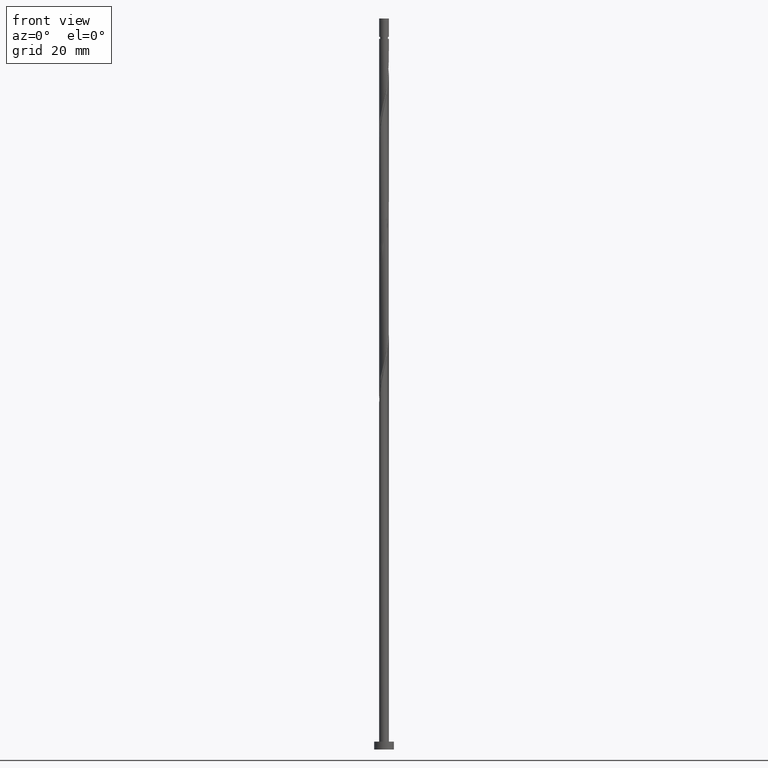
[diagram: clean part render]
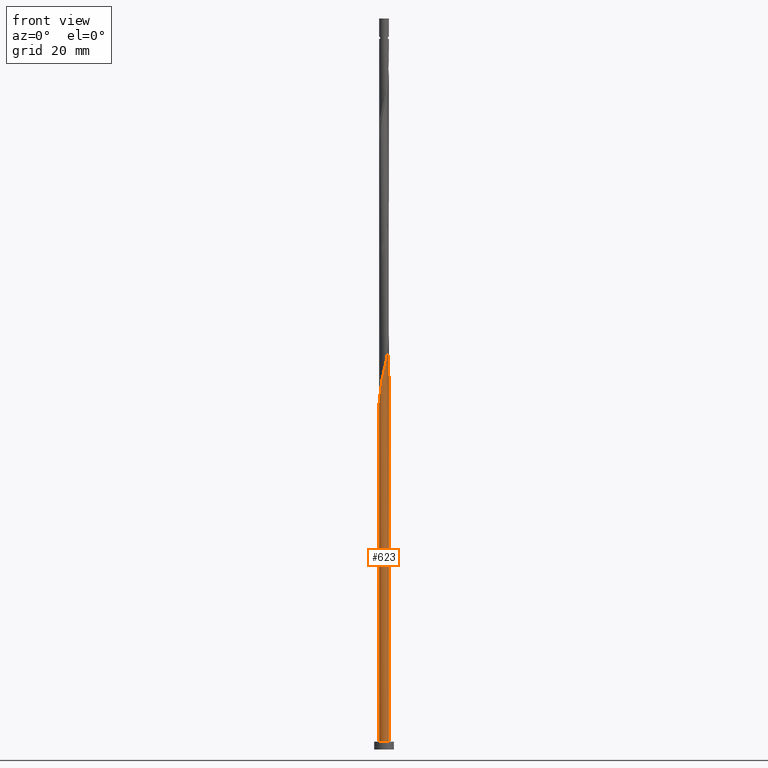
[diagram: same view with one face highlighted and labeled with its STEP entity id]
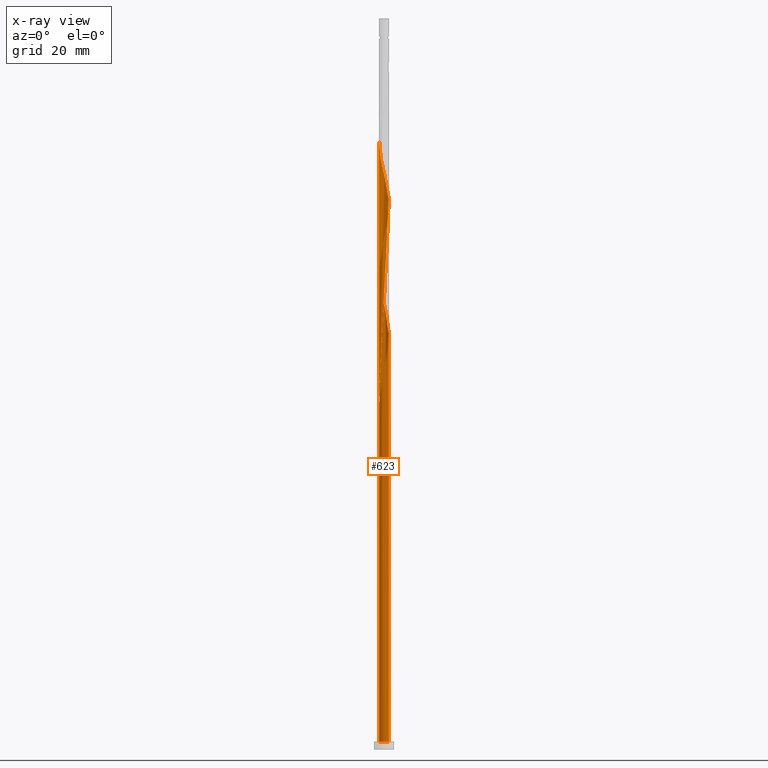
[diagram: x-ray of the same camera — body ghosted, the highlighted face saturated]
A machine part, front view. The second image highlights one B-rep face of the part: STEP entity #623.
The next image is the same camera in x-ray: the body ghosted, the highlighted face saturated — about 0% of this face is hidden behind the body in this view.
In plain terms, the highlighted cylindrical surface (bore or boss wall) has radius 1.25 mm, axis along (-0, -0, -1).
Its self-contained STEP definition (entity closure, byte-faithful):
#3 = EDGE_CURVE ( 'NONE', #858, #1055, #978, .T. ) ;
#11 = ORIENTED_EDGE ( 'NONE', *, *, #1561, .F. ) ;
#16 = CARTESIAN_POINT ( 'NONE',  ( 0.000000000000000000, 0.000000000000000000, 2.000000000000000000 ) ) ;
#29 = CARTESIAN_POINT ( 'NONE',  ( -0.3970789007548229388, 1.185254549274265434, 83.60107748277430062 ) ) ;
#42 = CARTESIAN_POINT ( 'NONE',  ( -1.045505570518540539, -0.7046275228471895469, 91.23996637166324319 ) ) ;
#49 = CARTESIAN_POINT ( 'NONE',  ( -1.224999999999999201, 0.2487468592766560738, 89.15663303832988618 ) ) ;
#56 = CARTESIAN_POINT ( 'NONE',  ( 1.257748145290793929, 0.08747254973209489526, 105.1288552605521147 ) ) ;
#64 = CARTESIAN_POINT ( 'NONE',  ( 1.042096397946900677, -0.6903152159601428917, 101.6566330383299004 ) ) ;
#73 = CARTESIAN_POINT ( 'NONE',  ( 1.247639561794345209, -0.07678231466697457708, 104.4344108161076718 ) ) ;
#79 = CARTESIAN_POINT ( 'NONE',  ( 0.7046275228471892138, -1.045505570518540539, 99.57329970499652916 ) ) ;
#81 = ORIENTED_EDGE ( 'NONE', *, *, #401, .F. ) ;
#86 = CARTESIAN_POINT ( 'NONE',  ( -1.132978120250636378, 0.5531206224436038266, 119.0177441494410147 ) ) ;
#93 = AXIS2_PLACEMENT_3D ( 'NONE', #1518, #373, #758 ) ;
#111 = CARTESIAN_POINT ( 'NONE',  ( -0.2487468592766558517, 1.225000000000001199, 80.82329970499654337 ) ) ;
#112 = CARTESIAN_POINT ( 'NONE',  ( -1.250000000000001998, -0.1256297269074015677, 88.62649275230907620 ) ) ;
#114 = CARTESIAN_POINT ( 'NONE',  ( 1.118878712613875059, 0.5573243458342024281, 140.5455219272188288 ) ) ;
#117 = CARTESIAN_POINT ( 'NONE',  ( -1.042096397946901121, 0.6903152159601423365, 84.98996637166322898 ) ) ;
#118 = DIRECTION ( 'NONE',  ( -1.000000000000000000, 0.000000000000000000, 0.000000000000000000 ) ) ;
#121 = CARTESIAN_POINT ( 'NONE',  ( -0.08747254973209477036, 1.257748145290793929, 146.7955219272188288 ) ) ;
#122 = DIRECTION ( 'NONE',  ( -0.000000000000000000, -0.000000000000000000, -1.000000000000000000 ) ) ;
#133 = CARTESIAN_POINT ( 'NONE',  ( -0.8275098094766795143, 0.9512146756431648642, 85.68441081610765764 ) ) ;
#149 = CARTESIAN_POINT ( 'NONE',  ( -1.249999999999999778, 0.1256297269074032330, 89.68677332435068195 ) ) ;
#163 = VECTOR ( 'NONE', #122, 1000.000000000000000 ) ;
#166 = CARTESIAN_POINT ( 'NONE',  ( -0.4100211688212162531, 1.192251854709209358, 114.8510774827743717 ) ) ;
#176 = CARTESIAN_POINT ( 'NONE',  ( 1.118878712613875059, 0.5573243458342024281, 107.2121885938854433 ) ) ;
#185 = CARTESIAN_POINT ( 'NONE',  ( 0.5573243458342024281, -1.118878712613875059, 98.87885526055210050 ) ) ;
#194 = CARTESIAN_POINT ( 'NONE',  ( 0.9365076899976112479, 0.8279210992451770945, 108.6010774827743575 ) ) ;
#201 = CARTESIAN_POINT ( 'NONE',  ( 0.6903152159601424476, 1.042096397946901121, 109.9899663716632148 ) ) ;
#220 = CIRCLE ( 'NONE', #93, 1.250000000000000000 ) ;
#237 = CARTESIAN_POINT ( 'NONE',  ( -1.250000000000001776, -1.555193582136450178E-15, 88.09306638311981885 ) ) ;
#242 = DIRECTION ( 'NONE',  ( -0.000000000000000000, -0.000000000000000000, -1.000000000000000000 ) ) ;
#256 = EDGE_CURVE ( 'NONE', #987, #1347, #1120, .T. ) ;
#270 = CARTESIAN_POINT ( 'NONE',  ( -0.5531206224436029384, 1.132978120250635490, 84.29552192721875770 ) ) ;
#278 = CARTESIAN_POINT ( 'NONE',  ( -1.192251854709209802, -0.4100211688212160865, 89.85107748277431483 ) ) ;
#285 = CARTESIAN_POINT ( 'NONE',  ( -0.6903152159601412263, 1.042096397946899788, 84.98996637166320056 ) ) ;
#289 = CARTESIAN_POINT ( 'NONE',  ( -0.2487468592766558517, 1.225000000000001199, 114.1566330383299004 ) ) ;
#297 = CARTESIAN_POINT ( 'NONE',  ( -0.5531206224436042707, -1.132978120250636378, 94.01774414944104308 ) ) ;
#300 = EDGE_CURVE ( 'NONE', #673, #1347, #494, .T. ) ;
#305 = CARTESIAN_POINT ( 'NONE',  ( -1.045505570518540539, -0.7046275228471895469, 124.5732997049965718 ) ) ;
#312 = CARTESIAN_POINT ( 'NONE',  ( 0.3970789007548241600, 1.185254549274266545, 111.3788552605521289 ) ) ;
#323 = CARTESIAN_POINT ( 'NONE',  ( -0.5573243458342029832, 1.118878712613874615, 115.5455219272187719 ) ) ;
#326 = CARTESIAN_POINT ( 'NONE',  ( -1.185254549274266767, 0.3970789007548238270, 86.37885526055212893 ) ) ;
#356 = CARTESIAN_POINT ( 'NONE',  ( -1.250000000000001776, -1.555193582136450178E-15, 88.09306638311981885 ) ) ;
#359 = LINE ( 'NONE', #389, #163 ) ;
#366 = ORIENTED_EDGE ( 'NONE', *, *, #300, .F. ) ;
#373 = DIRECTION ( 'NONE',  ( 0.000000000000000000, 0.000000000000000000, 1.000000000000000000 ) ) ;
#383 = ORIENTED_EDGE ( 'NONE', *, *, #300, .T. ) ;
#389 = CARTESIAN_POINT ( 'NONE',  ( -1.250000000000000000, 0.000000000000000000, 186.0000000000000000 ) ) ;
#390 = CARTESIAN_POINT ( 'NONE',  ( -1.192251854709207803, 0.4100211688212159755, 88.46218859388542910 ) ) ;
#401 = EDGE_CURVE ( 'NONE', #1382, #885, #359, .T. ) ;
#425 = CARTESIAN_POINT ( 'NONE',  ( -1.042096397946901121, 0.6903152159601423365, 118.3232997049965860 ) ) ;
#433 = CARTESIAN_POINT ( 'NONE',  ( 0.2487468592766560183, -1.225000000000001199, 130.8232997049966002 ) ) ;
#442 = CARTESIAN_POINT ( 'NONE',  ( -1.185254549274266767, 0.3970789007548238270, 119.7121885938854433 ) ) ;
#449 = CARTESIAN_POINT ( 'NONE',  ( -1.247639561794345431, 0.07678231466697386931, 121.1010774827743433 ) ) ;
#454 = ORIENTED_EDGE ( 'NONE', *, *, #256, .T. ) ;
#460 = CARTESIAN_POINT ( 'NONE',  ( -1.250000000000002220, 6.056282699665982073E-16, 154.7597330497865471 ) ) ;
#467 = CARTESIAN_POINT ( 'NONE',  ( -1.250000000000001998, 6.056282699665983059E-16, 154.7597330497865471 ) ) ;
#471 = CARTESIAN_POINT ( 'NONE',  ( -1.250000000000001998, 0.03842743957208769739, 154.5965693617583838 ) ) ;
#478 = CARTESIAN_POINT ( 'NONE',  ( -0.4100211688212162531, 1.192251854709209358, 148.1844108161076576 ) ) ;
#480 = EDGE_CURVE ( 'NONE', #1347, #987, #220, .T. ) ;
#482 = CARTESIAN_POINT ( 'NONE',  ( -0.7046275228471898799, 1.045505570518540539, 82.90663303832990039 ) ) ;
#490 = ORIENTED_EDGE ( 'NONE', *, *, #480, .T. ) ;
#493 = CARTESIAN_POINT ( 'NONE',  ( 1.192251854709209802, 0.4100211688212160310, 139.8510774827744001 ) ) ;
#494 = LINE ( 'NONE', #1389, #1037 ) ;
#504 = DIRECTION ( 'NONE',  ( 1.000000000000000000, 0.000000000000000000, 0.000000000000000000 ) ) ;
#506 = CARTESIAN_POINT ( 'NONE',  ( -0.9365076899976109148, -0.8279210992451775386, 91.93441081610767185 ) ) ;
#549 = CARTESIAN_POINT ( 'NONE',  ( 1.237530978297897155, -0.2410371790660440217, 103.7399663716632290 ) ) ;
#558 = CARTESIAN_POINT ( 'NONE',  ( 0.07678231466697466034, 1.247639561794345431, 112.7677441494409720 ) ) ;
#566 = CARTESIAN_POINT ( 'NONE',  ( -0.07678231466697392482, -1.247639561794345431, 96.10107748277434325 ) ) ;
#571 = CARTESIAN_POINT ( 'NONE',  ( 0.08747254973209560303, -1.257748145290793929, 96.79552192721881454 ) ) ;
#581 = CARTESIAN_POINT ( 'NONE',  ( -1.225000000000001199, -0.2487468592766561293, 122.4899663716632290 ) ) ;
#582 = DIRECTION ( 'NONE',  ( 0.000000000000000000, -0.000000000000000000, -1.000000000000000000 ) ) ;
#594 = DIRECTION ( 'NONE',  ( -1.000000000000000000, 0.000000000000000000, 0.000000000000000000 ) ) ;
#597 =( BOUNDED_CURVE ( )  B_SPLINE_CURVE ( 2, ( #1432, #149, #49, #390, #1545, #891, #1423, #133, #285, #270, #29, #639, #1141, #773, #1309 ),
 .UNSPECIFIED., .F., .T. ) 
 B_SPLINE_CURVE_WITH_KNOTS ( ( 3, 2, 2, 2, 2, 2, 2, 3 ),
 ( 0.9295317669814463502, 0.9375000000000000000, 0.9479166666666666297, 0.9583333333333333703, 0.9687500000000000000, 0.9791666666666666297, 0.9895833333333333703, 1.000000000000000000 ),
 .UNSPECIFIED. ) 
 CURVE ( )  GEOMETRIC_REPRESENTATION_ITEM ( )  RATIONAL_B_SPLINE_CURVE ( ( 0.9062941362546624857, 0.9031415850403667900, 0.9090909090909423673, 0.9013135103398606240, 0.9090909090909423673, 0.9013135103398606240, 0.9090909090909423673, 0.9013135103398606240, 0.9090909090909423673, 0.9013135103398606240, 0.9090909090909423673, 0.9013135103398606240, 0.9090909090909423673, 0.9013135103398606240, 0.9090909090909423673 ) ) 
 REPRESENTATION_ITEM ( '' )  );
#602 = CARTESIAN_POINT ( 'NONE',  ( -1.237530978297897599, 0.2410371790660433555, 87.07329970499657179 ) ) ;
#612 = CARTESIAN_POINT ( 'NONE',  ( -1.225000000000001199, -0.2487468592766561293, 89.15663303832988618 ) ) ;
#616 = CARTESIAN_POINT ( 'NONE',  ( 0.6903152159601424476, 1.042096397946901121, 143.3232997049965434 ) ) ;
#623 = ADVANCED_FACE ( 'NONE', ( #1255 ), #1105, .T. ) ;
#626 = CARTESIAN_POINT ( 'NONE',  ( 0.2410371790660441604, 1.237530978297897155, 145.4066330383299430 ) ) ;
#639 = CARTESIAN_POINT ( 'NONE',  ( -0.2410371790660428004, 1.237530978297895601, 82.90663303832987197 ) ) ;
#673 = VERTEX_POINT ( 'NONE', #356 ) ;
#680 = CARTESIAN_POINT ( 'NONE',  ( 0.08747254973209560303, -1.257748145290793929, 130.1288552605521147 ) ) ;
#687 = CARTESIAN_POINT ( 'NONE',  ( 0.8275098094766817347, 0.9512146756431651973, 109.2955219272188003 ) ) ;
#693 = CARTESIAN_POINT ( 'NONE',  ( 1.247639561794345209, -0.07678231466697457708, 137.7677441494409436 ) ) ;
#701 = CARTESIAN_POINT ( 'NONE',  ( -1.257748145290793929, -0.08747254973209590834, 121.7955219272187719 ) ) ;
#707 = CARTESIAN_POINT ( 'NONE',  ( 1.042096397946900677, -0.6903152159601428917, 134.9899663716632574 ) ) ;
#711 = CARTESIAN_POINT ( 'NONE',  ( -1.132978120250636378, 0.5531206224436038266, 85.68441081610767185 ) ) ;
#715 = CARTESIAN_POINT ( 'NONE',  ( -1.237530978297897599, 0.2410371790660433555, 153.7399663716631721 ) ) ;
#716 = CARTESIAN_POINT ( 'NONE',  ( 0.000000000000000000, 0.000000000000000000, 80.82329970499654337 ) ) ;
#720 = CARTESIAN_POINT ( 'NONE',  ( 1.250000000000000000, 0.000000000000000000, 2.000000000000000000 ) ) ;
#732 = CARTESIAN_POINT ( 'NONE',  ( -0.9512146756431658634, 0.8275098094766809576, 84.29552192721877191 ) ) ;
#743 = CARTESIAN_POINT ( 'NONE',  ( -0.9512146756431658634, 0.8275098094766809576, 150.9621885938854575 ) ) ;
#753 = EDGE_LOOP ( 'NONE', ( #81, #11, #383, #490, #454, #366, #1142, #779, #950 ) ) ;
#758 = DIRECTION ( 'NONE',  ( 1.000000000000000000, 0.000000000000000000, 0.000000000000000000 ) ) ;
#773 = CARTESIAN_POINT ( 'NONE',  ( 0.08747254973209614426, 1.257748145290791930, 81.51774414944100045 ) ) ;
#775 = AXIS2_PLACEMENT_3D ( 'NONE', #1119, #841, #118 ) ;
#778 = CARTESIAN_POINT ( 'NONE',  ( -1.118878712613874837, -0.5573243458342027612, 90.54552192721880033 ) ) ;
#779 = ORIENTED_EDGE ( 'NONE', *, *, #3, .T. ) ;
#795 = CARTESIAN_POINT ( 'NONE',  ( 1.132978120250635934, -0.5531206224436042707, 135.6844108161076861 ) ) ;
#796 = AXIS2_PLACEMENT_3D ( 'NONE', #716, #582, #594 ) ;
#797 = CARTESIAN_POINT ( 'NONE',  ( -1.250000000000000000, -1.353317492147590715E-15, 90.22019969353995350 ) ) ;
#803 = CARTESIAN_POINT ( 'NONE',  ( 0.2487468592766560183, -1.225000000000001199, 97.48996637166322898 ) ) ;
#812 = CARTESIAN_POINT ( 'NONE',  ( 1.185254549274266545, -0.3970789007548241600, 136.3788552605521147 ) ) ;
#822 = CARTESIAN_POINT ( 'NONE',  ( 0.8279210992451775386, -0.9365076899976109148, 100.2677441494410147 ) ) ;
#830 = CARTESIAN_POINT ( 'NONE',  ( -0.9365076899976109148, -0.8279210992451775386, 125.2677441494410004 ) ) ;
#835 = CARTESIAN_POINT ( 'NONE',  ( -1.185254549274266767, 0.3970789007548238270, 153.0455219272187719 ) ) ;
#839 = CARTESIAN_POINT ( 'NONE',  ( -0.8279210992451778717, 0.9365076899976106928, 83.60107748277434325 ) ) ;
#841 = DIRECTION ( 'NONE',  ( -0.000000000000000000, -0.000000000000000000, -1.000000000000000000 ) ) ;
#850 = CARTESIAN_POINT ( 'NONE',  ( 0.5531206224436043817, 1.132978120250635934, 144.0177441494410004 ) ) ;
#855 = CARTESIAN_POINT ( 'NONE',  ( 0.8275098094766817347, 0.9512146756431651973, 142.6288552605522284 ) ) ;
#858 = VERTEX_POINT ( 'NONE', #1442 ) ;
#862 = CARTESIAN_POINT ( 'NONE',  ( 1.225000000000001199, 0.2487468592766559627, 139.1566330383298578 ) ) ;
#863 = DIRECTION ( 'NONE',  ( 0.000000000000000000, 0.000000000000000000, 1.000000000000000000 ) ) ;
#885 = VERTEX_POINT ( 'NONE', #797 ) ;
#891 = CARTESIAN_POINT ( 'NONE',  ( -1.045505570518538763, 0.7046275228471889918, 87.07329970499655758 ) ) ;
#916 = CARTESIAN_POINT ( 'NONE',  ( -0.6903152159601423365, -1.042096397946901121, 126.6566330383298862 ) ) ;
#924 = CARTESIAN_POINT ( 'NONE',  ( -0.2410371790660434665, -1.237530978297897599, 128.7399663716632290 ) ) ;
#933 = CARTESIAN_POINT ( 'NONE',  ( -0.3970789007548240490, -1.185254549274266545, 128.0455219272187719 ) ) ;
#940 = CARTESIAN_POINT ( 'NONE',  ( -1.118878712613874837, -0.5573243458342027612, 123.8788552605521431 ) ) ;
#947 = CARTESIAN_POINT ( 'NONE',  ( -0.7046275228471898799, 1.045505570518540539, 116.2399663716632148 ) ) ;
#950 = ORIENTED_EDGE ( 'NONE', *, *, #1507, .F. ) ;
#960 = CARTESIAN_POINT ( 'NONE',  ( -1.132978120250636378, 0.5531206224436038266, 152.3510774827744001 ) ) ;
#978 = CIRCLE ( 'NONE', #796, 1.250000000000000000 ) ;
#987 = VERTEX_POINT ( 'NONE', #720 ) ;
#992 = CARTESIAN_POINT ( 'NONE',  ( -1.042096397946901121, 0.6903152159601423365, 151.6566330383298862 ) ) ;
#1010 = CARTESIAN_POINT ( 'NONE',  ( -0.8275098094766812906, -0.9512146756431653083, 92.62885526055211471 ) ) ;
#1037 = VECTOR ( 'NONE', #242, 1000.000000000000000 ) ;
#1052 = CARTESIAN_POINT ( 'NONE',  ( -0.9512146756431658634, 0.8275098094766809576, 117.6288552605521573 ) ) ;
#1055 = VERTEX_POINT ( 'NONE', #1245 ) ;
#1061 = CARTESIAN_POINT ( 'NONE',  ( 1.237530978297897155, -0.2410371790660440217, 137.0732997049966002 ) ) ;
#1068 = CARTESIAN_POINT ( 'NONE',  ( 1.225000000000001199, 0.2487468592766559627, 105.8232997049965576 ) ) ;
#1077 = CARTESIAN_POINT ( 'NONE',  ( 1.192251854709209802, 0.4100211688212160310, 106.5177441494410289 ) ) ;
#1089 = CARTESIAN_POINT ( 'NONE',  ( 0.7046275228471892138, -1.045505570518540539, 132.9066330383299146 ) ) ;
#1105 = CYLINDRICAL_SURFACE ( 'NONE', #775, 1.250000000000000000 ) ;
#1119 = CARTESIAN_POINT ( 'NONE',  ( 0.000000000000000000, 0.000000000000000000, 186.0000000000000000 ) ) ;
#1120 = CIRCLE ( 'NONE', #1338, 1.250000000000000000 ) ;
#1123 = CARTESIAN_POINT ( 'NONE',  ( -0.8279210992451778717, 0.9365076899976106928, 150.2677441494410573 ) ) ;
#1130 = CARTESIAN_POINT ( 'NONE',  ( -0.7046275228471898799, 1.045505570518540539, 149.5732997049965718 ) ) ;
#1141 = CARTESIAN_POINT ( 'NONE',  ( -0.07678231466697330032, 1.247639561794343654, 82.21218859388542910 ) ) ;
#1142 = ORIENTED_EDGE ( 'NONE', *, *, #1190, .F. ) ;
#1185 = CARTESIAN_POINT ( 'NONE',  ( 1.132978120250635934, -0.5531206224436042707, 102.3510774827743290 ) ) ;
#1190 = EDGE_CURVE ( 'NONE', #858, #673, #1342, .T. ) ;
#1193 = CARTESIAN_POINT ( 'NONE',  ( -0.8279210992451778717, 0.9365076899976106928, 116.9344108161076576 ) ) ;
#1204 = CARTESIAN_POINT ( 'NONE',  ( -0.3970789007548240490, -1.185254549274266545, 94.71218859388544331 ) ) ;
#1211 = CARTESIAN_POINT ( 'NONE',  ( 0.5573243458342024281, -1.118878712613875059, 132.2121885938854859 ) ) ;
#1221 = CARTESIAN_POINT ( 'NONE',  ( 0.4100211688212160310, -1.192251854709209802, 131.5177441494410289 ) ) ;
#1236 = CARTESIAN_POINT ( 'NONE',  ( -1.250000000000000000, 0.000000000000000000, 2.000000000000000000 ) ) ;
#1241 = CARTESIAN_POINT ( 'NONE',  ( -0.2487468592766558517, 1.225000000000001199, 147.4899663716632858 ) ) ;
#1245 = CARTESIAN_POINT ( 'NONE',  ( 0.2487468592766562681, 1.224999999999999201, 80.82329970499654337 ) ) ;
#1254 = CARTESIAN_POINT ( 'NONE',  ( -1.250000000000001776, -1.555193582136450178E-15, 88.09306638311981885 ) ) ;
#1255 = FACE_OUTER_BOUND ( 'NONE', #753, .T. ) ;
#1257 = CARTESIAN_POINT ( 'NONE',  ( 1.257748145290793929, 0.08747254973209489526, 138.4621885938854291 ) ) ;
#1309 = CARTESIAN_POINT ( 'NONE',  ( 0.2487468592766562681, 1.224999999999999201, 80.82329970499654337 ) ) ;
#1313 = CARTESIAN_POINT ( 'NONE',  ( 0.9512146756431653083, -0.8275098094766812906, 134.2955219272188003 ) ) ;
#1322 = CARTESIAN_POINT ( 'NONE',  ( -0.2410371790660434665, -1.237530978297897599, 95.40663303832990039 ) ) ;
#1329 = CARTESIAN_POINT ( 'NONE',  ( 1.185254549274266545, -0.3970789007548241600, 103.0455219272188003 ) ) ;
#1335 = CARTESIAN_POINT ( 'NONE',  ( -0.07678231466697392482, -1.247639561794345431, 129.4344108161076861 ) ) ;
#1338 = AXIS2_PLACEMENT_3D ( 'NONE', #16, #863, #504 ) ;
#1342 =( BOUNDED_CURVE ( )  B_SPLINE_CURVE ( 2, ( #111, #1502, #1364, #482, #839, #732, #117, #711, #326, #602, #1348, #1492, #237 ),
 .UNSPECIFIED., .F., .T. ) 
 B_SPLINE_CURVE_WITH_KNOTS ( ( 3, 2, 2, 2, 2, 2, 3 ),
 ( 0.000000000000000000, 0.01041666666666662966, 0.02083333333333337034, 0.03125000000000000000, 0.04166666666666662966, 0.05208333333333337034, 0.05453176698144626688 ),
 .UNSPECIFIED. ) 
 CURVE ( )  GEOMETRIC_REPRESENTATION_ITEM ( )  RATIONAL_B_SPLINE_CURVE ( ( 0.9090909090909468082, 0.9013135103398650649, 0.9090909090909468082, 0.9013135103398650649, 0.9090909090909468082, 0.9013135103398650649, 0.9090909090909468082, 0.9013135103398650649, 0.9090909090909468082, 0.9013135103398650649, 0.9090909090909468082, 0.9072628343904405313, 0.9062941362546670376 ) ) 
 REPRESENTATION_ITEM ( '' )  );
#1344 = CARTESIAN_POINT ( 'NONE',  ( 0.9512146756431653083, -0.8275098094766812906, 100.9621885938854433 ) ) ;
#1347 = VERTEX_POINT ( 'NONE', #1236 ) ;
#1348 = CARTESIAN_POINT ( 'NONE',  ( -1.247639561794345431, 0.07678231466697386931, 87.76774414944101466 ) ) ;
#1364 = CARTESIAN_POINT ( 'NONE',  ( -0.5573243458342029832, 1.118878712613874615, 82.21218859388545752 ) ) ;
#1373 = CARTESIAN_POINT ( 'NONE',  ( -1.247639561794345431, 0.07678231466697386931, 154.4344108161077145 ) ) ;
#1382 = VERTEX_POINT ( 'NONE', #467 ) ;
#1387 = CARTESIAN_POINT ( 'NONE',  ( 0.07678231466697466034, 1.247639561794345431, 146.1010774827743433 ) ) ;
#1389 = CARTESIAN_POINT ( 'NONE',  ( -1.250000000000000000, 0.000000000000000000, 186.0000000000000000 ) ) ;
#1423 = CARTESIAN_POINT ( 'NONE',  ( -0.9365076899976091385, 0.8279210992451768725, 86.37885526055212893 ) ) ;
#1432 = CARTESIAN_POINT ( 'NONE',  ( -1.250000000000000000, -1.353317492147590518E-15, 90.22019969353995350 ) ) ;
#1440 = CARTESIAN_POINT ( 'NONE',  ( 0.4100211688212160310, -1.192251854709209802, 98.18441081610767185 ) ) ;
#1442 = CARTESIAN_POINT ( 'NONE',  ( -0.2487468592766558517, 1.225000000000001199, 80.82329970499654337 ) ) ;
#1448 = CARTESIAN_POINT ( 'NONE',  ( 0.8279210992451775386, -0.9365076899976109148, 133.6010774827743433 ) ) ;
#1454 = CARTESIAN_POINT ( 'NONE',  ( -1.192251854709209802, -0.4100211688212160865, 123.1844108161076434 ) ) ;
#1461 = CARTESIAN_POINT ( 'NONE',  ( 1.045505570518540539, 0.7046275228471892138, 107.9066330383299004 ) ) ;
#1467 = CARTESIAN_POINT ( 'NONE',  ( -1.237530978297897599, 0.2410371790660433555, 120.4066330383298862 ) ) ;
#1477 = CARTESIAN_POINT ( 'NONE',  ( 0.3970789007548241600, 1.185254549274266545, 144.7121885938853723 ) ) ;
#1482 = CARTESIAN_POINT ( 'NONE',  ( 1.045505570518540539, 0.7046275228471892138, 141.2399663716632574 ) ) ;
#1490 = CARTESIAN_POINT ( 'NONE',  ( 0.9365076899976112479, 0.8279210992451770945, 141.9344108161076576 ) ) ;
#1492 = CARTESIAN_POINT ( 'NONE',  ( -1.250000000000001776, 0.03842743957209207584, 87.92990269509169821 ) ) ;
#1502 = CARTESIAN_POINT ( 'NONE',  ( -0.4100211688212162531, 1.192251854709209358, 81.51774414944098623 ) ) ;
#1507 = EDGE_CURVE ( 'NONE', #885, #1055, #597, .T. ) ;
#1509 = CARTESIAN_POINT ( 'NONE',  ( -0.5573243458342029832, 1.118878712613874615, 148.8788552605521147 ) ) ;
#1518 = CARTESIAN_POINT ( 'NONE',  ( 0.000000000000000000, 0.000000000000000000, 2.000000000000000000 ) ) ;
#1529 = CARTESIAN_POINT ( 'NONE',  ( -0.6903152159601423365, -1.042096397946901121, 93.32329970499655758 ) ) ;
#1545 = CARTESIAN_POINT ( 'NONE',  ( -1.118878712613873283, 0.5573243458342028722, 87.76774414944098623 ) ) ;
#1561 = EDGE_CURVE ( 'NONE', #673, #1382, #1625, .T. ) ;
#1571 = CARTESIAN_POINT ( 'NONE',  ( -0.5531206224436042707, -1.132978120250636378, 127.3510774827743290 ) ) ;
#1580 = CARTESIAN_POINT ( 'NONE',  ( -0.8275098094766812906, -0.9512146756431653083, 125.9621885938854433 ) ) ;
#1585 = CARTESIAN_POINT ( 'NONE',  ( -0.08747254973209477036, 1.257748145290793929, 113.4621885938854433 ) ) ;
#1591 = CARTESIAN_POINT ( 'NONE',  ( 0.2410371790660441604, 1.237530978297897155, 112.0732997049965718 ) ) ;
#1598 = CARTESIAN_POINT ( 'NONE',  ( 0.5531206224436043817, 1.132978120250635934, 110.6844108161076576 ) ) ;
#1625 =( BOUNDED_CURVE ( )  B_SPLINE_CURVE ( 2, ( #1254, #112, #612, #278, #778, #42, #506, #1010, #1529, #297, #1204, #1322, #566, #571, #803, #1440, #185, #79, #822, #1344, #64, #1185, #1329, #549, #73, #56, #1068, #1077, #176, #1461, #194, #687, #201, #1598, #312, #1591, #558, #1585, #289, #166, #323, #947, #1193, #1052, #425, #86, #442, #1467, #449, #701, #581, #1454, #940, #305, #830, #1580, #916, #1571, #933, #924, #1335, #680, #433, #1221, #1211, #1089, #1448, #1313, #707, #795, #812, #1061, #693, #1257, #862, #493, #114, #1482, #1490, #855, #616, #850, #1477, #626, #1387, #121, #1241, #478, #1509, #1130, #1123, #743, #992, #960, #835, #715, #1373, #471, #460 ),
 .UNSPECIFIED., .F., .T. ) 
 B_SPLINE_CURVE_WITH_KNOTS ( ( 3, 2, 2, 2, 2, 2, 2, 2, 2, 2, 2, 2, 2, 2, 2, 2, 2, 2, 2, 2, 2, 2, 2, 2, 2, 2, 2, 2, 2, 2, 2, 2, 2, 2, 2, 2, 2, 2, 2, 2, 2, 2, 2, 2, 2, 2, 2, 2, 2, 3 ),
 ( 0.05453176698144626688, 0.06250000000000000000, 0.07291666666666662966, 0.08333333333333337034, 0.09375000000000000000, 0.1041666666666666297, 0.1145833333333333703, 0.1250000000000000000, 0.1354166666666666297, 0.1458333333333333703, 0.1562500000000000000, 0.1666666666666666297, 0.1770833333333333703, 0.1875000000000000000, 0.1979166666666666297, 0.2083333333333333703, 0.2187500000000000000, 0.2291666666666666297, 0.2395833333333333703, 0.2500000000000000000, 0.2604166666666666297, 0.2708333333333333703, 0.2812500000000000000, 0.2916666666666666297, 0.3020833333333333703, 0.3125000000000000000, 0.3229166666666666297, 0.3333333333333333703, 0.3437500000000000000, 0.3541666666666666297, 0.3645833333333333703, 0.3750000000000000000, 0.3854166666666666297, 0.3958333333333333703, 0.4062500000000000000, 0.4166666666666666297, 0.4270833333333333703, 0.4375000000000000000, 0.4479166666666666297, 0.4583333333333333703, 0.4687500000000000000, 0.4791666666666666297, 0.4895833333333333703, 0.5000000000000000000, 0.5104166666666667407, 0.5208333333333332593, 0.5312500000000000000, 0.5416666666666667407, 0.5520833333333332593, 0.5545317669814464612 ),
 .UNSPECIFIED. ) 
 CURVE ( )  GEOMETRIC_REPRESENTATION_ITEM ( )  RATIONAL_B_SPLINE_CURVE ( ( 0.9062941362546670376, 0.9031415850403712309, 0.9090909090909468082, 0.9013135103398650649, 0.9090909090909468082, 0.9013135103398650649, 0.9090909090909468082, 0.9013135103398650649, 0.9090909090909468082, 0.9013135103398650649, 0.9090909090909468082, 0.9013135103398650649, 0.9090909090909468082, 0.9013135103398650649, 0.9090909090909468082, 0.9013135103398650649, 0.9090909090909468082, 0.9013135103398650649, 0.9090909090909468082, 0.9013135103398650649, 0.9090909090909468082, 0.9013135103398650649, 0.9090909090909468082, 0.9013135103398650649, 0.9090909090909468082, 0.9013135103398650649, 0.9090909090909468082, 0.9013135103398650649, 0.9090909090909468082, 0.9013135103398650649, 0.9090909090909468082, 0.9013135103398650649, 0.9090909090909468082, 0.9013135103398650649, 0.9090909090909468082, 0.9013135103398650649, 0.9090909090909468082, 0.9013135103398650649, 0.9090909090909468082, 0.9013135103398650649, 0.9090909090909468082, 0.9013135103398650649, 0.9090909090909468082, 0.9013135103398650649, 0.9090909090909468082, 0.9013135103398650649, 0.9090909090909468082, 0.9013135103398650649, 0.9090909090909468082, 0.9013135103398650649, 0.9090909090909468082, 0.9013135103398650649, 0.9090909090909468082, 0.9013135103398650649, 0.9090909090909468082, 0.9013135103398650649, 0.9090909090909468082, 0.9013135103398650649, 0.9090909090909468082, 0.9013135103398650649, 0.9090909090909468082, 0.9013135103398650649, 0.9090909090909468082, 0.9013135103398650649, 0.9090909090909468082, 0.9013135103398650649, 0.9090909090909468082, 0.9013135103398650649, 0.9090909090909468082, 0.9013135103398650649, 0.9090909090909468082, 0.9013135103398650649, 0.9090909090909468082, 0.9013135103398650649, 0.9090909090909468082, 0.9013135103398650649, 0.9090909090909468082, 0.9013135103398650649, 0.9090909090909468082, 0.9013135103398650649, 0.9090909090909468082, 0.9013135103398650649, 0.9090909090909468082, 0.9013135103398650649, 0.9090909090909468082, 0.9013135103398650649, 0.9090909090909468082, 0.9013135103398650649, 0.9090909090909468082, 0.9013135103398650649, 0.9090909090909468082, 0.9013135103398650649, 0.9090909090909468082, 0.9013135103398650649, 0.9090909090909468082, 0.9013135103398650649, 0.9090909090909468082, 0.9072628343904403092, 0.9062941362546669266 ) ) 
 REPRESENTATION_ITEM ( '' )  );